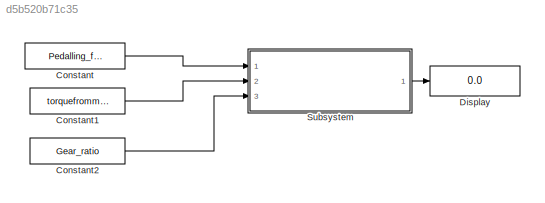
MODEL slx_d5b520b71c35
KIND model
CONFIG AbsTol = auto
CONFIG EnableMultiTasking = off
CONFIG FixedStep = auto
CONFIG MaxStep = auto
CONFIG MinStep = auto
CONFIG RelTol = 1e-3
CONFIG SampleTimeConstraint = Unconstrained
CONFIG Solver = VariableStepAuto
CONFIG SolverName = VariableStepAuto
CONFIG StartTime = 0.0
CONFIG StopTime = 10.0
BLOCK [Constant] Constant
  Value = Pedalling_force
BLOCK [Constant] Constant1
  Value = torquefrommotor
BLOCK [Constant] Constant2
  Value = Gear_ratio
BLOCK [Display] Display
  Decimation = 1
  Ports = [1]
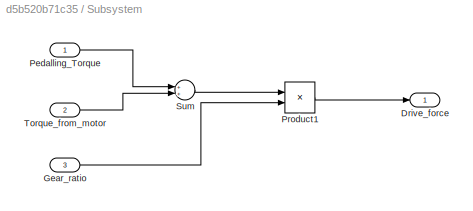
BLOCK [SubSystem] Subsystem
  Ports = [3, 1]
  RequestExecContextInheritance = off
BLOCK [Outport] Subsystem/Drive_force
  IconDisplay = Port number
  VectorParamsAs1DForOutWhenUnconnected = off
BLOCK [Inport] Subsystem/Gear_ratio
  IconDisplay = Port number
  Port = 3
BLOCK [Inport] Subsystem/Pedalling_Torque
  IconDisplay = Port number
BLOCK [Product] Subsystem/Product1
  InputSameDT = off
  OutDataTypeStr = Inherit: Inherit via internal rule
  Ports = [2, 1]
  RndMeth = Floor
  SaturateOnIntegerOverflow = off
BLOCK [Sum] Subsystem/Sum
  InputSameDT = off
  OutDataTypeStr = Inherit: Inherit via internal rule
  Ports = [2, 1]
  SaturateOnIntegerOverflow = off
BLOCK [Inport] Subsystem/Torque_from_motor
  IconDisplay = Port number
  Port = 2
LINE Constant1:1 -> Subsystem:2
LINE Constant2:1 -> Subsystem:3
LINE Constant:1 -> Subsystem:1
LINE Subsystem/Gear_ratio:1 -> Subsystem/Product1:2
LINE Subsystem/Pedalling_Torque:1 -> Subsystem/Sum:1
LINE Subsystem/Product1:1 -> Subsystem/Drive_force:1
LINE Subsystem/Sum:1 -> Subsystem/Product1:1
LINE Subsystem/Torque_from_motor:1 -> Subsystem/Sum:2
LINE Subsystem:1 -> Display:1
